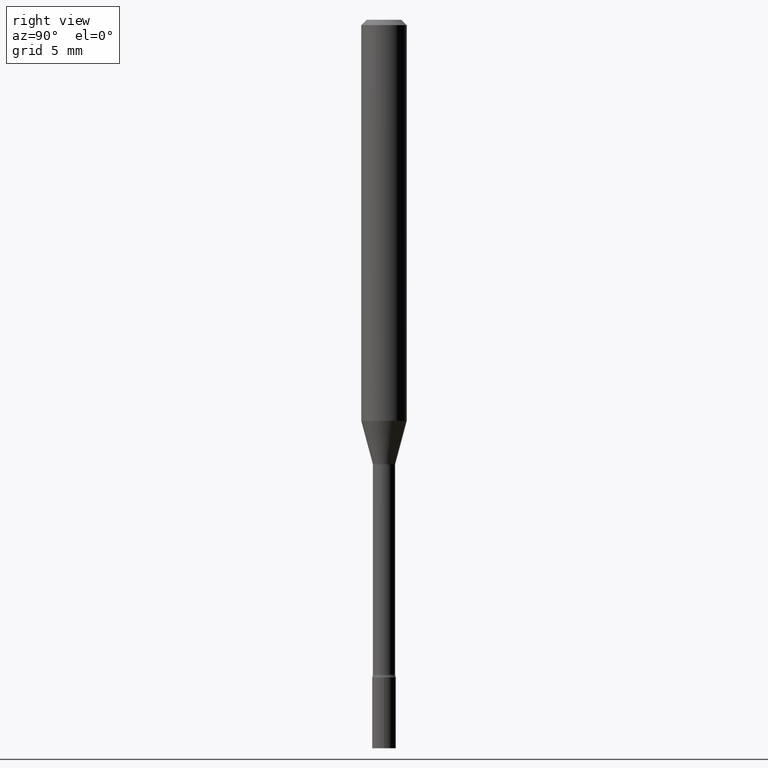
[diagram: clean part render]
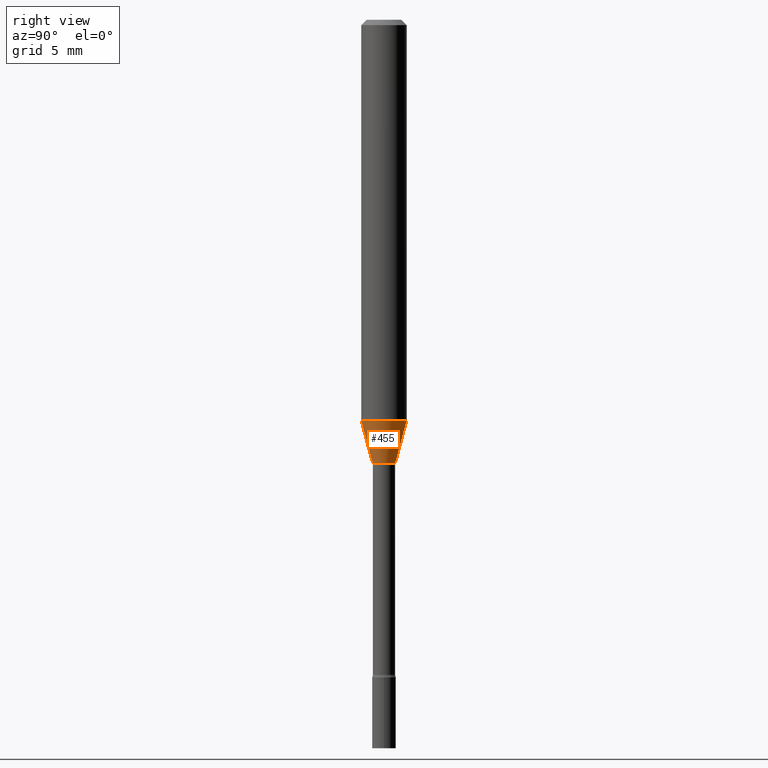
[diagram: same view with one face highlighted and labeled with its STEP entity id]
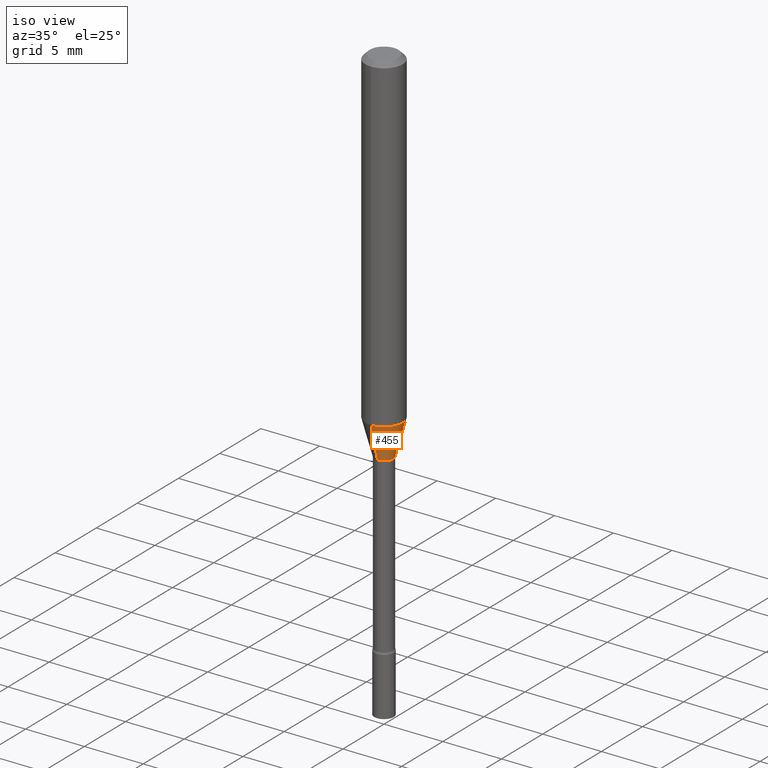
[diagram: same view with one face highlighted and labeled with its STEP entity id]
A machine part, right view. The second image highlights one B-rep face of the part: STEP entity #455.
A second angle (iso view) of the same face is appended — the face is thin or edge-on in the first view.
In plain terms, the highlighted conical surface has half-angle 15 deg.
Its self-contained STEP definition (entity closure, byte-faithful):
#18 = EDGE_CURVE ( 'NONE', #424, #234, #385, .T. ) ;
#26 = CARTESIAN_POINT ( 'NONE',  ( 2.207024792658399071E-16, 0.03106111260565972559, -1.218092501787273241 ) ) ;
#65 = ORIENTED_EDGE ( 'NONE', *, *, #138, .F. ) ;
#73 = EDGE_CURVE ( 'NONE', #503, #438, #233, .T. ) ;
#138 = EDGE_CURVE ( 'NONE', #438, #234, #499, .T. ) ;
#151 = CARTESIAN_POINT ( 'NONE',  ( 2.978764867471240520E-29, -4.253007884720253007E-15, -1.218092501787273019 ) ) ;
#170 = ORIENTED_EDGE ( 'NONE', *, *, #18, .T. ) ;
#179 = CONICAL_SURFACE ( 'NONE', #329, 0.03106111260566397914, 0.2617993877991498519 ) ;
#186 = CARTESIAN_POINT ( 'NONE',  ( -4.364351673553647002E-16, -0.06250000000000384415, -1.100760976698174298 ) ) ;
#226 = CARTESIAN_POINT ( 'NONE',  ( 2.978764867471240520E-29, -4.253007884720253007E-15, -1.218092501787273019 ) ) ;
#233 = LINE ( 'NONE', #439, #366 ) ;
#234 = VERTEX_POINT ( 'NONE', #476 ) ;
#243 = CARTESIAN_POINT ( 'NONE',  ( 2.691838362079070792E-29, -3.843341212773745017E-15, -1.100760976698174520 ) ) ;
#249 = ORIENTED_EDGE ( 'NONE', *, *, #466, .T. ) ;
#270 = DIRECTION ( 'NONE',  ( -2.445434039779886837E-29, 3.491531126314244194E-15, 1.000000000000000000 ) ) ;
#283 = DIRECTION ( 'NONE',  ( -6.982962677686265922E-15, -1.000000000000000000, 4.370956789862821150E-15 ) ) ;
#290 = EDGE_LOOP ( 'NONE', ( #249, #170, #65, #344 ) ) ;
#311 = DIRECTION ( 'NONE',  ( -6.982962677686265922E-15, -1.000000000000000000, 4.397537249142376224E-15 ) ) ;
#327 = CIRCLE ( 'NONE', #412, 0.03106111260566397914 ) ;
#329 = AXIS2_PLACEMENT_3D ( 'NONE', #226, #270, #440 ) ;
#332 = VECTOR ( 'NONE', #347, 39.37007874015748854 ) ;
#344 = ORIENTED_EDGE ( 'NONE', *, *, #73, .F. ) ;
#347 = DIRECTION ( 'NONE',  ( 1.839019923739597160E-15, 0.2588190451025245142, 0.9659258262890670910 ) ) ;
#353 = FACE_OUTER_BOUND ( 'NONE', #290, .T. ) ;
#356 = CARTESIAN_POINT ( 'NONE',  ( 3.323958445579647462E-16, 0.03106111260565972559, -1.218092501787273241 ) ) ;
#366 = VECTOR ( 'NONE', #397, 39.37007874015748143 ) ;
#385 = LINE ( 'NONE', #26, #332 ) ;
#397 = DIRECTION ( 'NONE',  ( -1.807323732225327378E-15, -0.2588190451025177974, 0.9659258262890690894 ) ) ;
#404 = AXIS2_PLACEMENT_3D ( 'NONE', #243, #406, #283 ) ;
#406 = DIRECTION ( 'NONE',  ( -2.445434039779886837E-29, 3.491531126314244194E-15, 1.000000000000000000 ) ) ;
#412 = AXIS2_PLACEMENT_3D ( 'NONE', #151, #486, #311 ) ;
#424 = VERTEX_POINT ( 'NONE', #356 ) ;
#438 = VERTEX_POINT ( 'NONE', #186 ) ;
#439 = CARTESIAN_POINT ( 'NONE',  ( -2.168985900527321632E-16, -0.03106111260566822921, -1.218092501787273019 ) ) ;
#440 = DIRECTION ( 'NONE',  ( -6.982962677686265922E-15, -1.000000000000000000, 4.397537249142376224E-15 ) ) ;
#455 = ADVANCED_FACE ( 'NONE', ( #353 ), #179, .T. ) ;
#466 = EDGE_CURVE ( 'NONE', #503, #424, #327, .T. ) ;
#476 = CARTESIAN_POINT ( 'NONE',  ( 4.440892098500895360E-16, 0.06249999999999617667, -1.100760976698174742 ) ) ;
#486 = DIRECTION ( 'NONE',  ( -2.445434039779886837E-29, 3.491531126314244194E-15, 1.000000000000000000 ) ) ;
#491 = CARTESIAN_POINT ( 'NONE',  ( -2.168985900527321632E-16, -0.03106111260566822921, -1.218092501787273019 ) ) ;
#499 = CIRCLE ( 'NONE', #404, 0.06250000000000000000 ) ;
#503 = VERTEX_POINT ( 'NONE', #491 ) ;